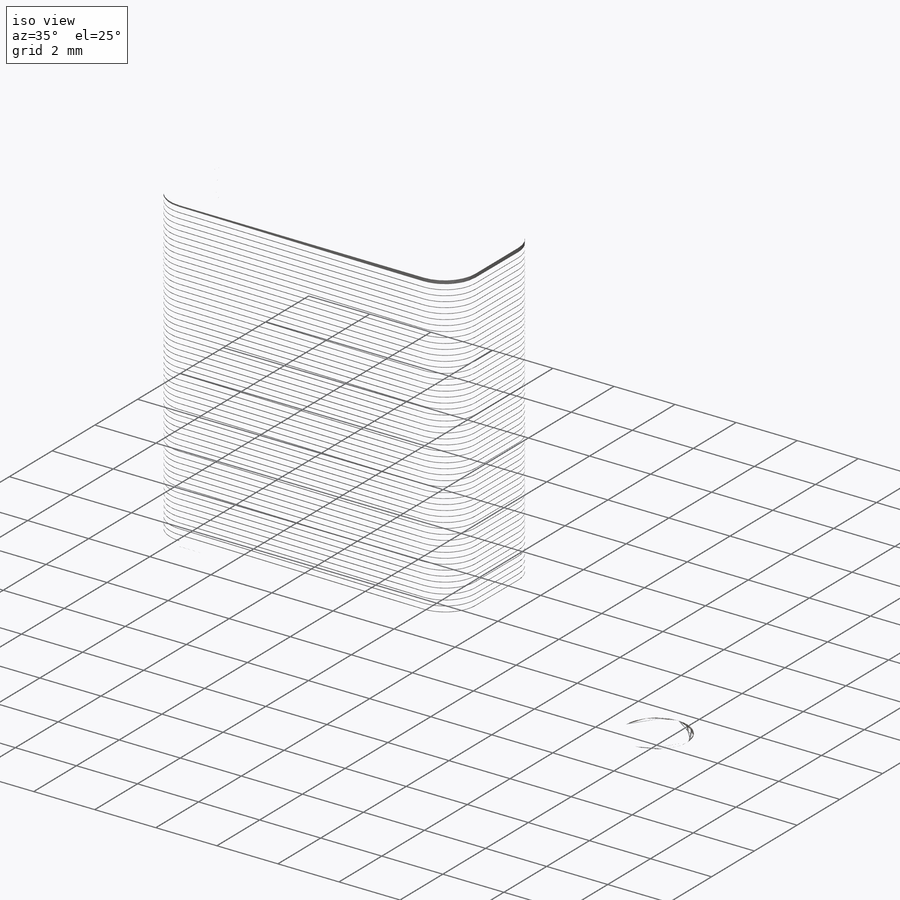
[diagram: iso view]
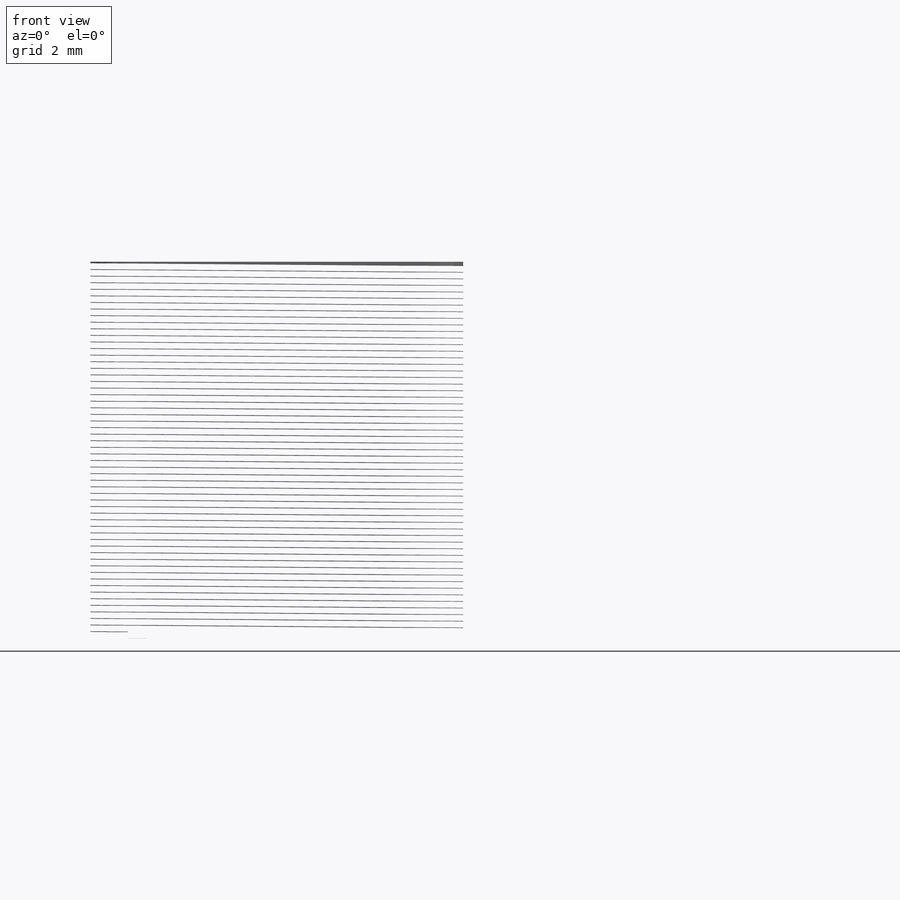
[diagram: front view]
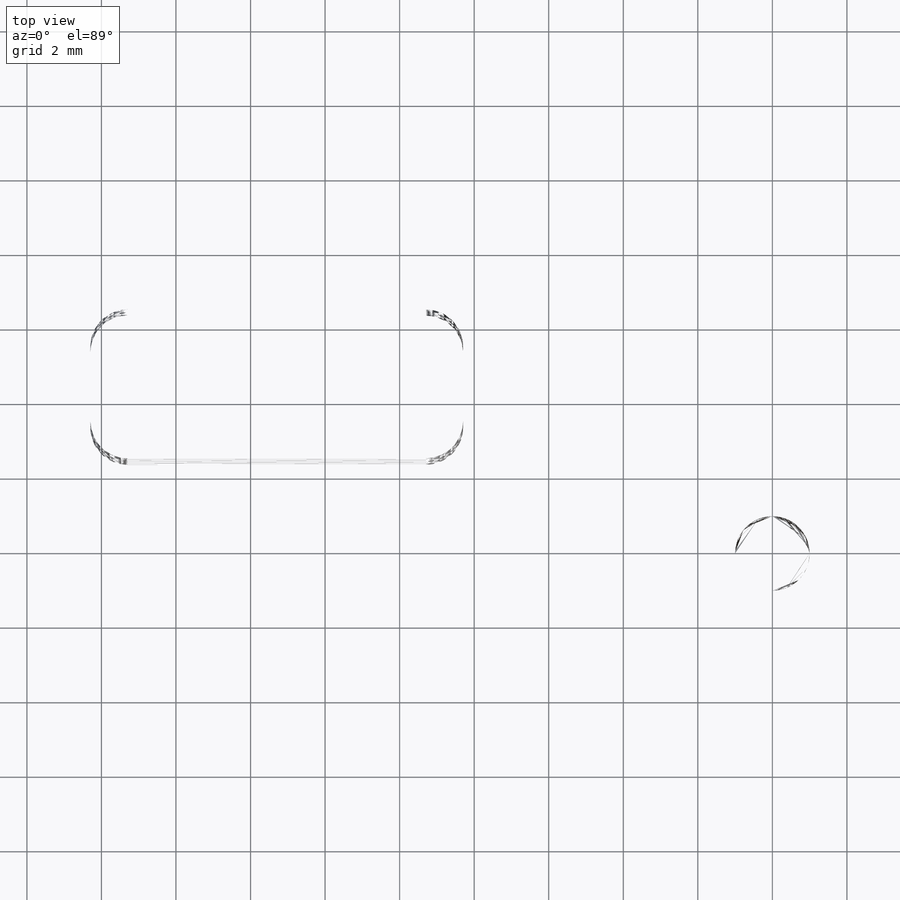
[diagram: top view]
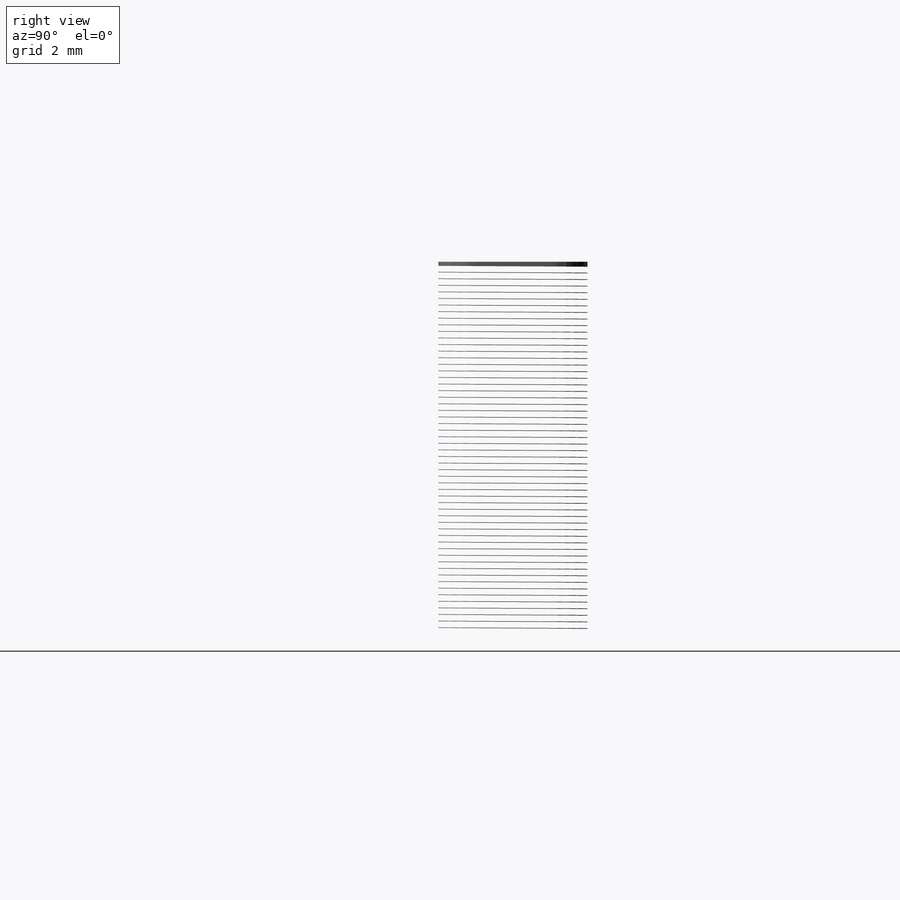
[diagram: right view]
SOLIDWORKS PART (.sldprt)
format: sldprt  version: not decoded by parser v0  size: 6,175,232 bytes
history: native  units: mm
features: sketch x7, extrude x4, plane x3, material x1, sweep x1 + 1 further entry (+9 scaffold rows collapsed)
feature tree (26):
  scaffold x9  (default folders/planes/origin — collapsed)
  material  "Wrought Copper"
  "Примечания"  RD1=0.126327mm
  plane  "Спереди"
  plane  "Сверху"
  plane  "Справа"
  sketch  "Sketch1"  dims[D1=4.0mm D2=10.0mm D3=4.0mm]
  extrude  "Boss-Extrude1"  Depth=10.1mm
  extrude  "Axis2"  [1 undecoded]
  extrude  "Axis3"  [1 undecoded]
  sketch  "3DSketch3"
  sketch  "Sketch5"  dims[D1=28800.0deg]
  sketch  "3DSketch6"
  sketch  "3DSketch8"
  sketch  "3DSketch9"  dims[D1=0.083mm]
  sweep  "Sweep4"
  sketch  "Sketch6"  dims[D1=5.0mm]
  extrude  "Boss-Extrude2"  Depth=0.3mm
decode coverage: 6 of 12 modeling features carry decoded parameters; 1 rows unclassified (native names shown)
note: 2 parameter values undecoded
note: suppression state not decoded; provenance and decode notes live in map.json
